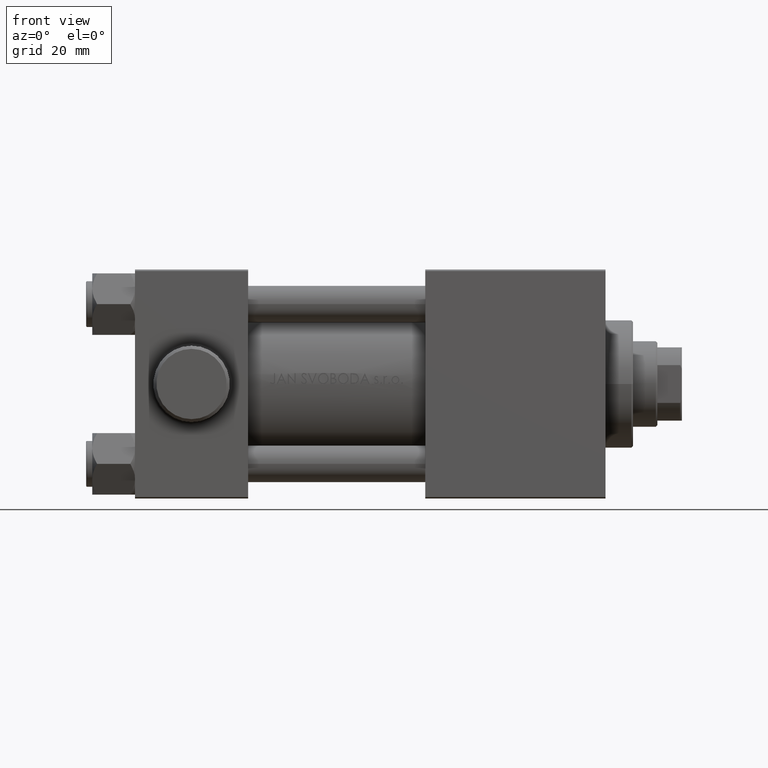
[diagram: clean part render]
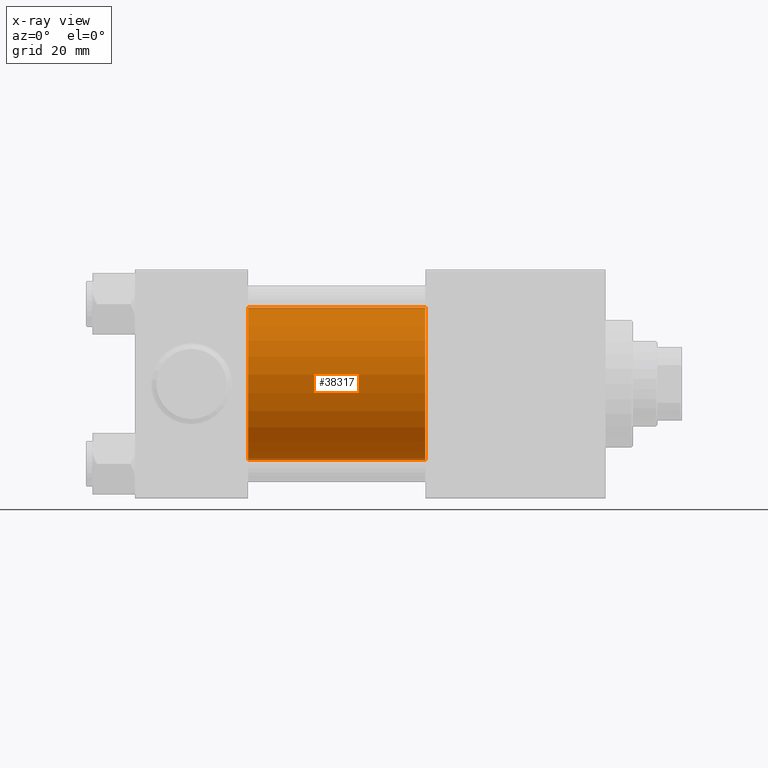
[diagram: x-ray — body ghosted, one internal face saturated and labeled with its STEP entity id]
A machine part, front view, then the same camera in x-ray: the body is ghosted and one INTERNAL B-rep face — a face not visible from any outside direction — is saturated and labeled: STEP entity #38317.
In plain terms, the highlighted cylindrical surface (partial cylindrical patch) has radius 25 mm, axis along (-1, -0, -0).
Its self-contained STEP definition (entity closure, byte-faithful):
#2965 = CARTESIAN_POINT ( 'NONE',  ( 95.00000000000000000, -4.078299540852317872E-16, -25.00000000000000000 ) ) ;
#3441 = ORIENTED_EDGE ( 'NONE', *, *, #36318, .F. ) ;
#4275 = DIRECTION ( 'NONE',  ( -1.000000000000000000, -0.000000000000000000, -0.000000000000000000 ) ) ;
#7298 = ORIENTED_EDGE ( 'NONE', *, *, #20476, .T. ) ;
#8051 = EDGE_CURVE ( 'NONE', #16322, #19845, #33094, .T. ) ;
#11228 = DIRECTION ( 'NONE',  ( -1.000000000000000000, -0.000000000000000000, -0.000000000000000000 ) ) ;
#11401 = VERTEX_POINT ( 'NONE', #31250 ) ;
#12822 = CARTESIAN_POINT ( 'NONE',  ( 37.00000000000000000, -3.469446951953614189E-15, 0.000000000000000000 ) ) ;
#16322 = VERTEX_POINT ( 'NONE', #27999 ) ;
#16463 = AXIS2_PLACEMENT_3D ( 'NONE', #12822, #29885, #22869 ) ;
#16812 = ORIENTED_EDGE ( 'NONE', *, *, #8051, .T. ) ;
#18471 = DIRECTION ( 'NONE',  ( -1.000000000000000000, -0.000000000000000000, -0.000000000000000000 ) ) ;
#18521 = VECTOR ( 'NONE', #18471, 1000.000000000000000 ) ;
#18937 = LINE ( 'NONE', #28770, #18521 ) ;
#19845 = VERTEX_POINT ( 'NONE', #2965 ) ;
#20476 = EDGE_CURVE ( 'NONE', #19845, #30955, #18937, .T. ) ;
#22869 = DIRECTION ( 'NONE',  ( 0.000000000000000000, 0.000000000000000000, -1.000000000000000000 ) ) ;
#25810 = CARTESIAN_POINT ( 'NONE',  ( 95.00000000000000000, -3.469446951953614189E-15, 25.00000000000000000 ) ) ;
#26662 = CARTESIAN_POINT ( 'NONE',  ( 37.00000000000000000, -4.078299540852317872E-16, -25.00000000000000000 ) ) ;
#27999 = CARTESIAN_POINT ( 'NONE',  ( 95.00000000000000000, -3.469446951953614189E-15, 25.00000000000000000 ) ) ;
#28469 = AXIS2_PLACEMENT_3D ( 'NONE', #29226, #11228, #46095 ) ;
#28770 = CARTESIAN_POINT ( 'NONE',  ( 95.00000000000000000, -4.078299540852317872E-16, -25.00000000000000000 ) ) ;
#29226 = CARTESIAN_POINT ( 'NONE',  ( 95.00000000000000000, -3.469446951953614189E-15, 0.000000000000000000 ) ) ;
#29885 = DIRECTION ( 'NONE',  ( 1.000000000000000000, 0.000000000000000000, 0.000000000000000000 ) ) ;
#30955 = VERTEX_POINT ( 'NONE', #26662 ) ;
#31250 = CARTESIAN_POINT ( 'NONE',  ( 37.00000000000000000, -3.469446951953614189E-15, 25.00000000000000000 ) ) ;
#32099 = EDGE_LOOP ( 'NONE', ( #16812, #7298, #33547, #3441 ) ) ;
#33094 = CIRCLE ( 'NONE', #40576, 25.00000000000000000 ) ;
#33547 = ORIENTED_EDGE ( 'NONE', *, *, #35785, .F. ) ;
#33700 = VECTOR ( 'NONE', #4275, 1000.000000000000000 ) ;
#35575 = CYLINDRICAL_SURFACE ( 'NONE', #28469, 25.00000000000000000 ) ;
#35785 = EDGE_CURVE ( 'NONE', #11401, #30955, #41147, .T. ) ;
#36318 = EDGE_CURVE ( 'NONE', #16322, #11401, #39383, .T. ) ;
#38317 = ADVANCED_FACE ( 'NONE', ( #40008 ), #35575, .F. ) ;
#39072 = DIRECTION ( 'NONE',  ( 1.000000000000000000, 0.000000000000000000, 0.000000000000000000 ) ) ;
#39383 = LINE ( 'NONE', #25810, #33700 ) ;
#39532 = CARTESIAN_POINT ( 'NONE',  ( 95.00000000000000000, -3.469446951953614189E-15, 0.000000000000000000 ) ) ;
#40008 = FACE_OUTER_BOUND ( 'NONE', #32099, .T. ) ;
#40576 = AXIS2_PLACEMENT_3D ( 'NONE', #39532, #39072, #43062 ) ;
#41147 = CIRCLE ( 'NONE', #16463, 25.00000000000000000 ) ;
#43062 = DIRECTION ( 'NONE',  ( 0.000000000000000000, 0.000000000000000000, -1.000000000000000000 ) ) ;
#46095 = DIRECTION ( 'NONE',  ( 0.000000000000000000, 0.000000000000000000, 1.000000000000000000 ) ) ;